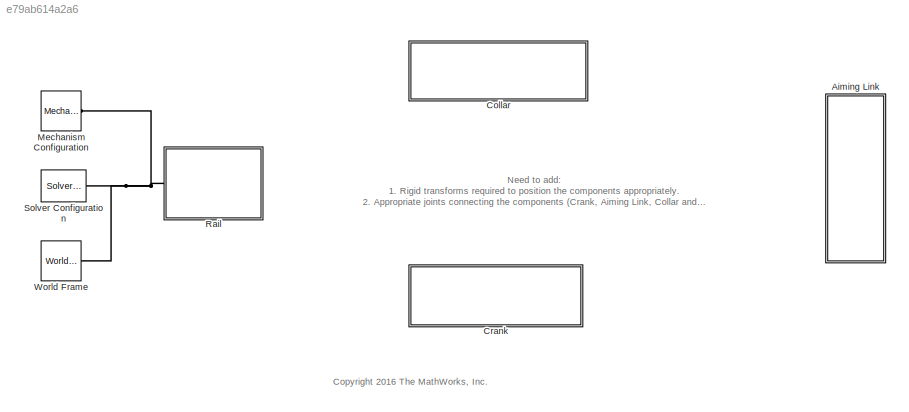
MODEL slx_e79ab614a2a6
KIND model
CONFIG AbsTol = auto
CONFIG FixedStep = auto
CONFIG MaxStep = 0.2
CONFIG MinStep = auto
CONFIG PreLoadFcn = collarArea = [ 0.15  0.25; ...\n                    -0.15  0.25; ...\n                    -0.15 -0.25; ...\n                     0.15 -0.25; ...\n                     0.15  0.25; ...\n                     0.05  0.15; ...\n                     0.05 -0.15; ...\n                    -0.05 -0.15; ...\n                    -0.05  0.15; ...\n                     0.05  0.15];
CONFIG RelTol = 1e-3
CONFIG SampleTimeConstraint = Unconstrained
CONFIG Solver = ode45
CONFIG SolverMode = Auto
CONFIG SolverName = ode45
CONFIG StartTime = 0.0
CONFIG StopTime = 10
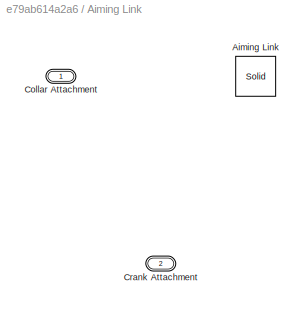
BLOCK [SubSystem] Aiming Link
  Ports = [0, 0, 0, 0, 0, 1, 1]
  RequestExecContextInheritance = off
  Variant = off
BLOCK [Reference] Aiming Link/Aiming Link  REF=sm_lib/Body Elements/Solid
  Ports = [0, 0, 0, 0, 0, 0, 1]
  SourceBlock = sm_lib/Body Elements/Solid
  SourceType = Solid
BLOCK [PMIOPort] Aiming Link/Collar Attachment
  Port = 1
  Side = Left
BLOCK [PMIOPort] Aiming Link/Crank Attachment
  Port = 2
  Side = Right
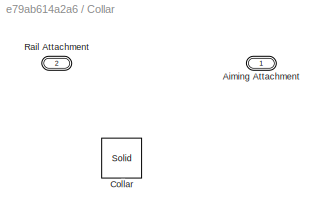
BLOCK [SubSystem] Collar
  Ports = [0, 0, 0, 0, 0, 1, 1]
  RequestExecContextInheritance = off
  Variant = off
BLOCK [PMIOPort] Collar/Aiming Attachment
  Port = 1
  Side = Right
BLOCK [Reference] Collar/Collar  REF=sm_lib/Body Elements/Solid
  Ports = [0, 0, 0, 0, 0, 0, 1]
  SourceBlock = sm_lib/Body Elements/Solid
  SourceType = Solid
BLOCK [PMIOPort] Collar/Rail Attachment
  Port = 2
  Side = Left
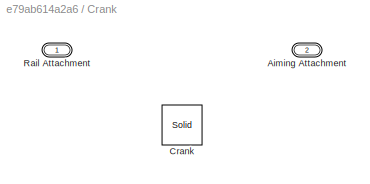
BLOCK [SubSystem] Crank
  Ports = [0, 0, 0, 0, 0, 1, 1]
  RequestExecContextInheritance = off
  Variant = off
BLOCK [PMIOPort] Crank/Aiming Attachment
  Port = 2
  Side = Right
BLOCK [Reference] Crank/Crank  REF=sm_lib/Body Elements/Solid
  Ports = [0, 0, 0, 0, 0, 0, 1]
  SourceBlock = sm_lib/Body Elements/Solid
  SourceType = Solid
BLOCK [PMIOPort] Crank/Rail Attachment
  Port = 1
  Side = Left
BLOCK [Reference] Mechanism Configuration  REF=sm_lib/Utilities/Mechanism
Configuration
  Ports = [0, 0, 0, 0, 0, 0, 1]
  SourceBlock = sm_lib/Utilities/Mechanism\nConfiguration
  SourceType = Mechanism\nConfiguration
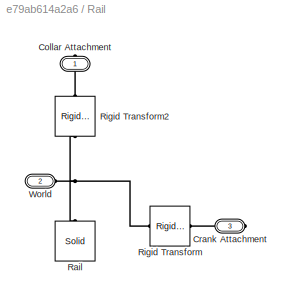
BLOCK [SubSystem] Rail
  Ports = [0, 0, 0, 0, 0, 1, 2]
  RequestExecContextInheritance = off
  Variant = off
BLOCK [PMIOPort] Rail/Collar Attachment
  Port = 1
  Side = Right
BLOCK [PMIOPort] Rail/Crank Attachment
  Port = 3
  Side = Right
BLOCK [Reference] Rail/Rail  REF=sm_lib/Body Elements/Solid
  Ports = [0, 0, 0, 0, 0, 0, 1]
  SourceBlock = sm_lib/Body Elements/Solid
  SourceType = Solid
BLOCK [Reference] Rail/Rigid Transform  REF=sm_lib/Frames and
Transforms/Rigid
Transform
  Ports = [0, 0, 0, 0, 0, 1, 1]
  SourceBlock = sm_lib/Frames and\nTransforms/Rigid\nTransform
  SourceType = Rigid\nTransform
BLOCK [Reference] Rail/Rigid Transform2  REF=sm_lib/Frames and
Transforms/Rigid
Transform
  Ports = [0, 0, 0, 0, 0, 1, 1]
  SourceBlock = sm_lib/Frames and\nTransforms/Rigid\nTransform
  SourceType = Rigid\nTransform
BLOCK [PMIOPort] Rail/World
  Port = 2
  Side = Left
BLOCK [Reference] Solver Configuration  REF=nesl_utility/Solver
Configuration
  Ports = [0, 0, 0, 0, 0, 0, 1]
  SourceBlock = nesl_utility/Solver\nConfiguration
  SourceType = Solver\nConfiguration
BLOCK [Reference] World Frame  REF=sm_lib/Frames and
Transforms/World Frame
  Ports = [0, 0, 0, 0, 0, 0, 1]
  SourceBlock = sm_lib/Frames and\nTransforms/World Frame
  SourceType = World Frame
ANNOTATION (root): Need to add: 1. Rigid transforms required to position the components appropriately. 2. Appropriate joints connecting the components (Crank, Aiming Link, Collar and Rail).
ANNOTATION (root): <copyright redacted>
PNET net1: Mechanism Configuration:RConn1 -- Rail:LConn1 -- Solver Configuration:RConn1 -- World Frame:RConn1
PLINE Rail/Collar Attachment:RConn1 -- Rail/Rigid Transform2:RConn1
PLINE Rail/Crank Attachment:RConn1 -- Rail/Rigid Transform:RConn1
PNET net2: Rail/Rail:RConn1 -- Rail/Rigid Transform2:LConn1 -- Rail/Rigid Transform:LConn1 -- Rail/World:RConn1
note: PNET lines group multi-terminal physical nets as a canonical sorted terminal list (undirected conserving connections); 2-terminal nets keep the pairwise PLINE form
